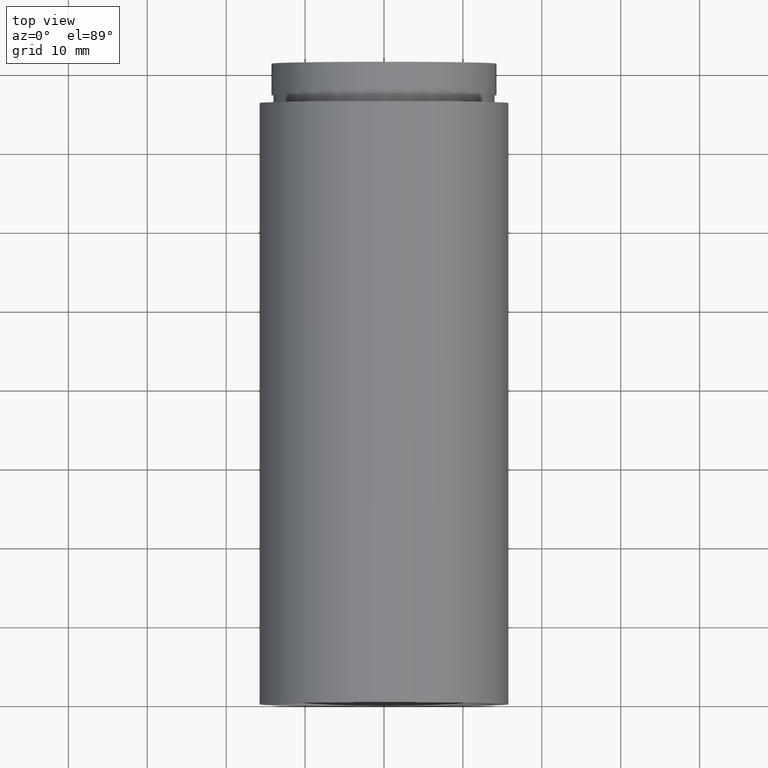
[diagram: clean part render]
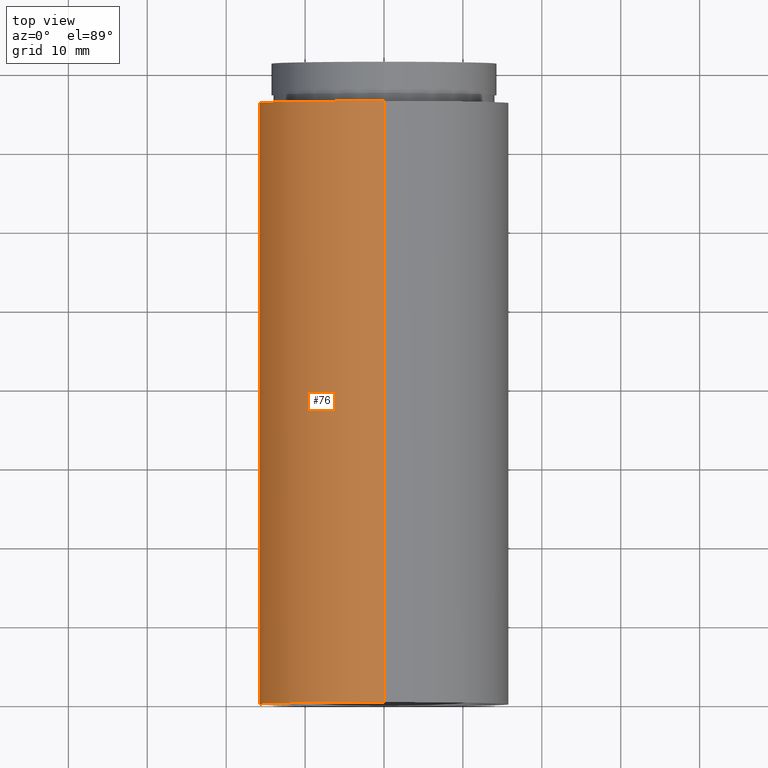
[diagram: same view with one face highlighted and labeled with its STEP entity id]
A machine part, top view. The second image highlights one B-rep face of the part: STEP entity #76.
In plain terms, the highlighted cylindrical surface (partial cylindrical patch) has radius 15.85 mm, axis along (-0, 1, -0).
Its self-contained STEP definition (entity closure, byte-faithful):
#14 = VECTOR ( 'NONE', #189, 1000.000000000000000 ) ;
#22 = DIRECTION ( 'NONE',  ( 0.0000000000000000000, 0.0000000000000000000, 1.000000000000000000 ) ) ;
#23 = VECTOR ( 'NONE', #49, 1000.000000000000000 ) ;
#36 = ORIENTED_EDGE ( 'NONE', *, *, #588, .F. ) ;
#49 = DIRECTION ( 'NONE',  ( -0.0000000000000000000, 1.000000000000000000, -0.0000000000000000000 ) ) ;
#76 = ADVANCED_FACE ( 'NONE', ( #317 ), #592, .T. ) ;
#107 = ORIENTED_EDGE ( 'NONE', *, *, #268, .T. ) ;
#122 = AXIS2_PLACEMENT_3D ( 'NONE', #230, #320, #271 ) ;
#123 = DIRECTION ( 'NONE',  ( -0.0000000000000000000, 1.000000000000000000, -0.0000000000000000000 ) ) ;
#136 = CIRCLE ( 'NONE', #609, 15.85000000000002100 ) ;
#173 = VERTEX_POINT ( 'NONE', #358 ) ;
#189 = DIRECTION ( 'NONE',  ( -0.0000000000000000000, 1.000000000000000000, -0.0000000000000000000 ) ) ;
#203 = CARTESIAN_POINT ( 'NONE',  ( 0.0000000000000000000, -2.775557561562891400E-014, 0.0000000000000000000 ) ) ;
#230 = CARTESIAN_POINT ( 'NONE',  ( 0.0000000000000000000, 161.3761669434274500, 0.0000000000000000000 ) ) ;
#236 = CARTESIAN_POINT ( 'NONE',  ( 0.0000000000000000000, 76.19999999999998900, 0.0000000000000000000 ) ) ;
#239 = CARTESIAN_POINT ( 'NONE',  ( 1.941065176648557100E-015, -2.775557561562891400E-014, -15.85000000000002100 ) ) ;
#254 = ORIENTED_EDGE ( 'NONE', *, *, #296, .F. ) ;
#268 = EDGE_CURVE ( 'NONE', #173, #305, #579, .T. ) ;
#271 = DIRECTION ( 'NONE',  ( 0.0000000000000000000, 0.0000000000000000000, 1.000000000000000000 ) ) ;
#279 = CIRCLE ( 'NONE', #291, 15.85000000000002100 ) ;
#291 = AXIS2_PLACEMENT_3D ( 'NONE', #236, #477, #573 ) ;
#296 = EDGE_CURVE ( 'NONE', #300, #488, #405, .T. ) ;
#300 = VERTEX_POINT ( 'NONE', #239 ) ;
#305 = VERTEX_POINT ( 'NONE', #445 ) ;
#317 = FACE_OUTER_BOUND ( 'NONE', #553, .T. ) ;
#319 = CARTESIAN_POINT ( 'NONE',  ( 1.941065176648557100E-015, 76.19999999999998900, -15.85000000000002100 ) ) ;
#320 = DIRECTION ( 'NONE',  ( -0.0000000000000000000, 1.000000000000000000, -0.0000000000000000000 ) ) ;
#358 = CARTESIAN_POINT ( 'NONE',  ( 0.0000000000000000000, -2.775557561562891400E-014, 15.85000000000002100 ) ) ;
#364 = EDGE_CURVE ( 'NONE', #300, #173, #136, .T. ) ;
#381 = CARTESIAN_POINT ( 'NONE',  ( 0.0000000000000000000, 161.3761669434274500, 15.85000000000002100 ) ) ;
#405 = LINE ( 'NONE', #426, #23 ) ;
#426 = CARTESIAN_POINT ( 'NONE',  ( 1.941065176648557100E-015, 161.3761669434274500, -15.85000000000002100 ) ) ;
#445 = CARTESIAN_POINT ( 'NONE',  ( 0.0000000000000000000, 76.19999999999998900, 15.85000000000002100 ) ) ;
#477 = DIRECTION ( 'NONE',  ( -0.0000000000000000000, 1.000000000000000000, -0.0000000000000000000 ) ) ;
#488 = VERTEX_POINT ( 'NONE', #319 ) ;
#553 = EDGE_LOOP ( 'NONE', ( #254, #554, #107, #36 ) ) ;
#554 = ORIENTED_EDGE ( 'NONE', *, *, #364, .T. ) ;
#573 = DIRECTION ( 'NONE',  ( 0.0000000000000000000, 0.0000000000000000000, 1.000000000000000000 ) ) ;
#579 = LINE ( 'NONE', #381, #14 ) ;
#588 = EDGE_CURVE ( 'NONE', #488, #305, #279, .T. ) ;
#592 = CYLINDRICAL_SURFACE ( 'NONE', #122, 15.85000000000002100 ) ;
#609 = AXIS2_PLACEMENT_3D ( 'NONE', #203, #123, #22 ) ;